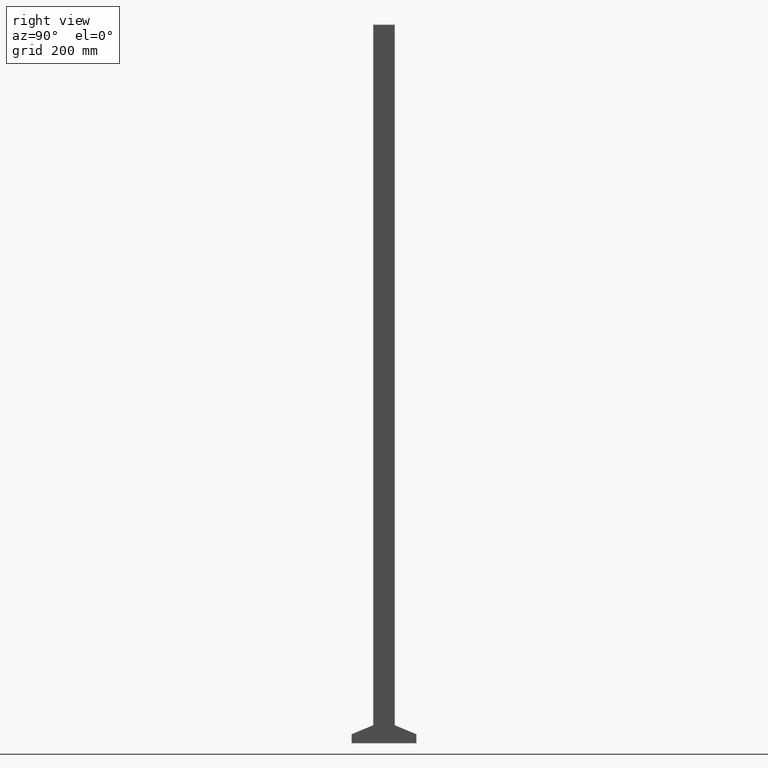
[diagram: clean part render]
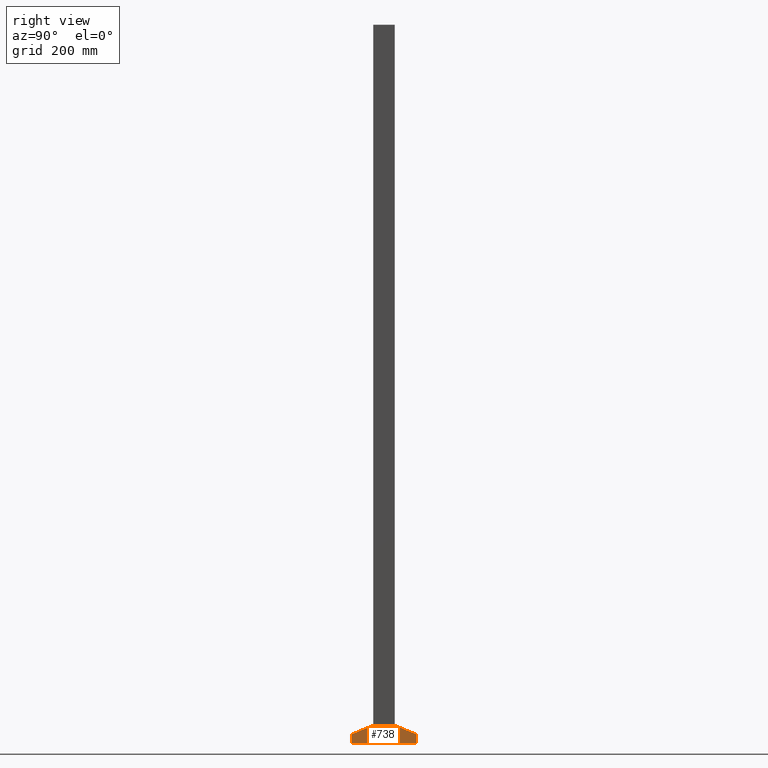
[diagram: same view with one face highlighted and labeled with its STEP entity id]
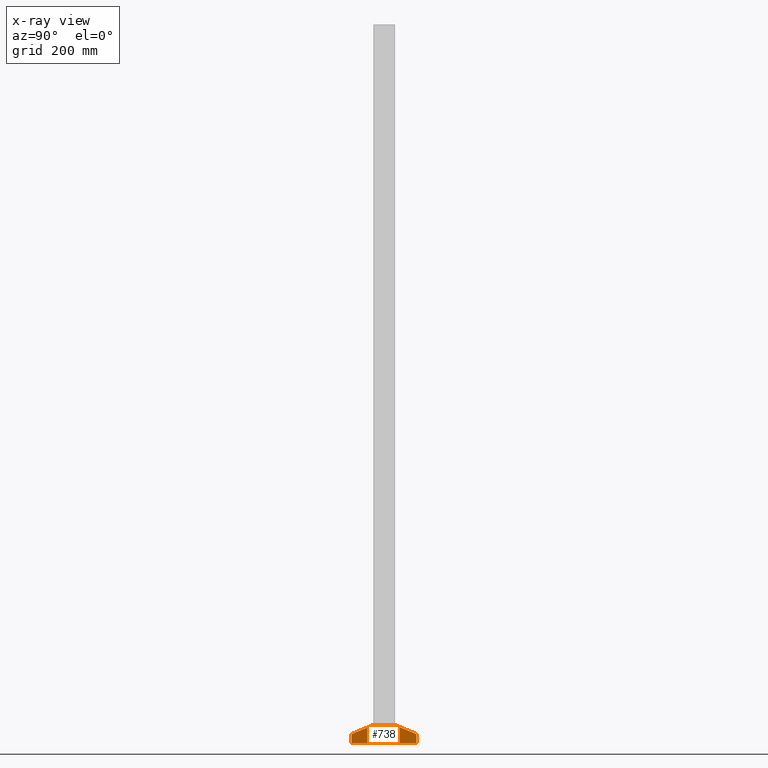
[diagram: x-ray of the same camera — body ghosted, the highlighted face saturated]
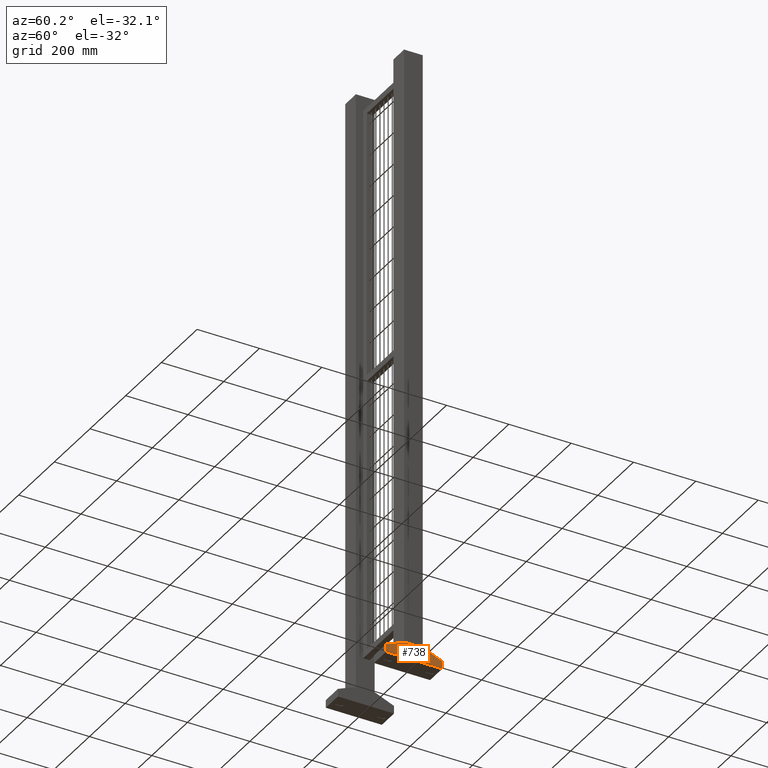
[diagram: same view with one face highlighted and labeled with its STEP entity id]
A machine part, right view. The second image highlights one B-rep face of the part: STEP entity #738.
The next image is the same camera in x-ray: the body ghosted, the highlighted face saturated — about 0% of this face is hidden behind the body in this view.
A second angle (auxiliary view) of the same face is appended — the face is thin or edge-on in the first view.
In plain terms, the highlighted planar face has unit normal (1, -0, 0).
Its self-contained STEP definition (entity closure, byte-faithful):
#96=LINE('',#2543,#190);
#100=LINE('',#2551,#194);
#107=LINE('',#2573,#201);
#110=LINE('',#2579,#204);
#113=LINE('',#2585,#207);
#115=LINE('',#2588,#209);
#190=VECTOR('',#2151,1.);
#194=VECTOR('',#2157,1.);
#201=VECTOR('',#2174,1.);
#204=VECTOR('',#2179,1.);
#207=VECTOR('',#2184,1.);
#209=VECTOR('',#2188,1.);
#547=PLANE('',#1808);
#624=FACE_OUTER_BOUND('',#995,.T.);
#738=ADVANCED_FACE('',(#624),#547,.T.);
#995=EDGE_LOOP('',(#1227,#1228,#1229,#1230,#1231,#1232));
#1227=ORIENTED_EDGE('',*,*,#1537,.T.);
#1228=ORIENTED_EDGE('',*,*,#1541,.T.);
#1229=ORIENTED_EDGE('',*,*,#1552,.T.);
#1230=ORIENTED_EDGE('',*,*,#1555,.T.);
#1231=ORIENTED_EDGE('',*,*,#1558,.T.);
#1232=ORIENTED_EDGE('',*,*,#1560,.T.);
#1405=VERTEX_POINT('',#2542);
#1406=VERTEX_POINT('',#2544);
#1408=VERTEX_POINT('',#2550);
#1418=VERTEX_POINT('',#2572);
#1420=VERTEX_POINT('',#2578);
#1422=VERTEX_POINT('',#2584);
#1537=EDGE_CURVE('',#1406,#1405,#96,.T.);
#1541=EDGE_CURVE('',#1405,#1408,#100,.T.);
#1552=EDGE_CURVE('',#1408,#1418,#107,.T.);
#1555=EDGE_CURVE('',#1418,#1420,#110,.T.);
#1558=EDGE_CURVE('',#1420,#1422,#113,.T.);
#1560=EDGE_CURVE('',#1422,#1406,#115,.T.);
#1808=AXIS2_PLACEMENT_3D('',#2590,#2191,#2192);
#2151=DIRECTION('',(-0.923076923076923,0.,-0.384615384615384));
#2157=DIRECTION('',(-1.11022302462516E-15,0.,-1.));
#2174=DIRECTION('',(1.,0.,0.));
#2179=DIRECTION('',(-1.11022302462516E-15,0.,1.));
#2184=DIRECTION('',(-0.923076923076923,0.,0.384615384615384));
#2188=DIRECTION('',(-1.,0.,0.));
#2191=DIRECTION('',(0.,-1.,0.));
#2192=DIRECTION('',(0.,0.,-1.));
#2542=CARTESIAN_POINT('',(-90.,-34.,25.));
#2543=CARTESIAN_POINT('',(-30.,-34.,50.));
#2544=CARTESIAN_POINT('',(-30.,-34.,50.));
#2550=CARTESIAN_POINT('',(-90.,-34.,0.));
#2551=CARTESIAN_POINT('',(-90.,-34.,25.));
#2572=CARTESIAN_POINT('',(90.,-34.,0.));
#2573=CARTESIAN_POINT('',(-90.,-34.,0.));
#2578=CARTESIAN_POINT('',(90.,-34.,25.));
#2579=CARTESIAN_POINT('',(90.,-34.,0.));
#2584=CARTESIAN_POINT('',(30.,-34.,50.));
#2585=CARTESIAN_POINT('',(90.,-34.,25.));
#2588=CARTESIAN_POINT('',(30.,-34.,50.));
#2590=CARTESIAN_POINT('',(0.,-34.,0.));